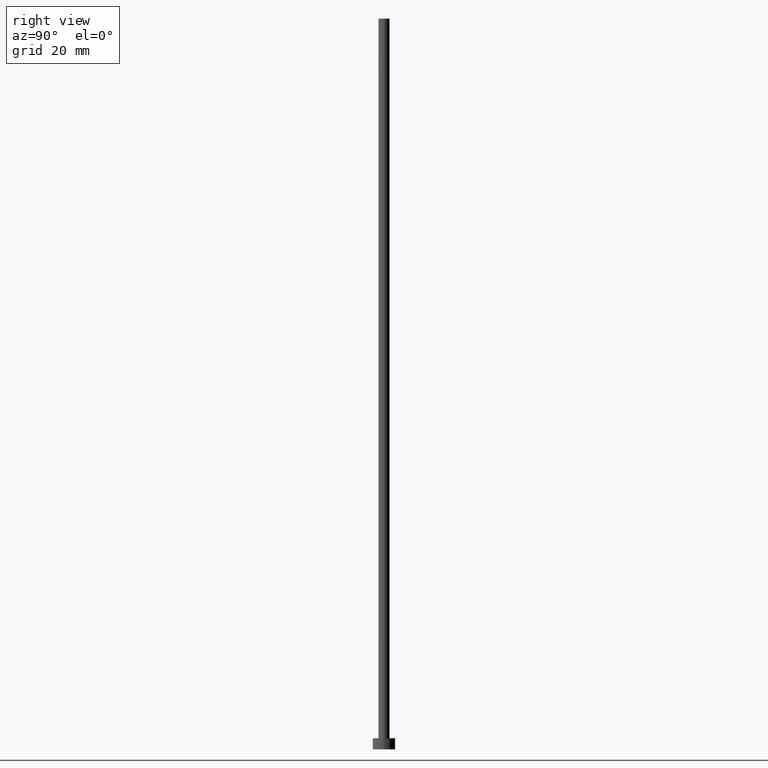
[diagram: clean part render]
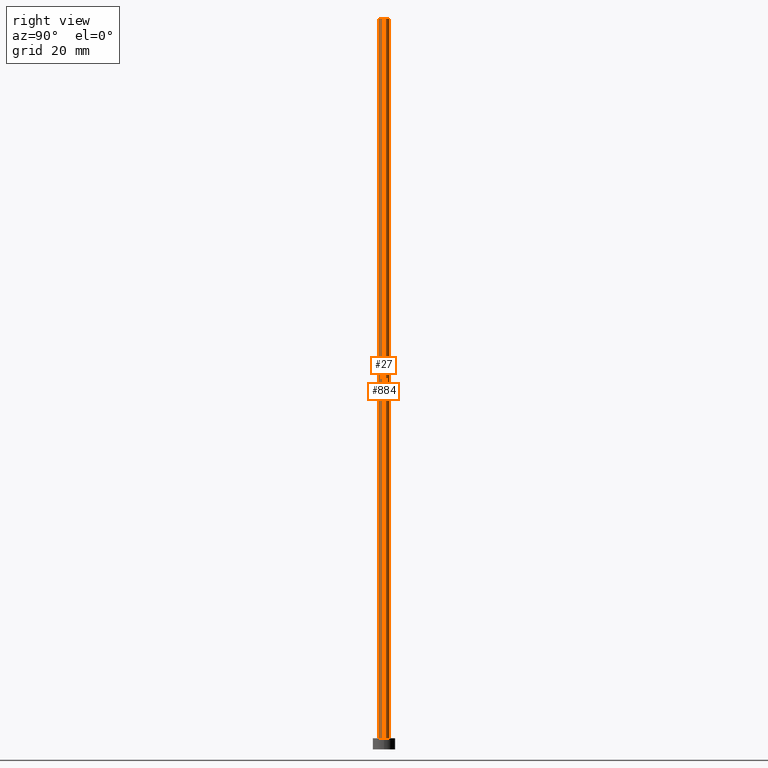
[diagram: same view with one multi-face feature highlighted, each face labeled with its STEP entity id]
A machine part, right view. The highlighted faces form ONE feature: a constant-radius fillet chain: 2 tangent blend faces with common blend radius 1.5 mm. The faces share edges in the B-rep.
Their STEP definitions:
[1] entity #27 (Cylinder):
#1 = EDGE_CURVE ( 'NONE', #370, #1275, #356, .T. ) ;
#9 = CARTESIAN_POINT ( 'NONE',  ( 1.500000000000000222, 1.836970198721030181E-16, 196.0000000000000000 ) ) ;
#11 = DIRECTION ( 'NONE',  ( 0.000000000000000000, 0.000000000000000000, 1.000000000000000000 ) ) ;
#27 = ADVANCED_FACE ( 'NONE', ( #1298 ), #396, .T. ) ;
#78 = DIRECTION ( 'NONE',  ( -0.000000000000000000, -0.000000000000000000, -1.000000000000000000 ) ) ;
#170 = DIRECTION ( 'NONE',  ( -1.000000000000000000, 0.000000000000000000, 0.000000000000000000 ) ) ;
#244 = DIRECTION ( 'NONE',  ( -0.000000000000000000, -0.000000000000000000, -1.000000000000000000 ) ) ;
#333 = LINE ( 'NONE', #626, #1237 ) ;
#336 = ORIENTED_EDGE ( 'NONE', *, *, #1130, .F. ) ;
#337 = CARTESIAN_POINT ( 'NONE',  ( -1.500000000000000222, 0.000000000000000000, 196.0000000000000000 ) ) ;
#356 = CIRCLE ( 'NONE', #487, 1.500000000000000222 ) ;
#370 = VERTEX_POINT ( 'NONE', #337 ) ;
#382 = EDGE_CURVE ( 'NONE', #714, #707, #415, .T. ) ;
#386 = EDGE_LOOP ( 'NONE', ( #336, #1293, #629, #856 ) ) ;
#396 = CYLINDRICAL_SURFACE ( 'NONE', #563, 1.500000000000000222 ) ;
#415 = CIRCLE ( 'NONE', #684, 1.500000000000000222 ) ;
#487 = AXIS2_PLACEMENT_3D ( 'NONE', #1423, #538, #1199 ) ;
#538 = DIRECTION ( 'NONE',  ( 0.000000000000000000, 0.000000000000000000, 1.000000000000000000 ) ) ;
#563 = AXIS2_PLACEMENT_3D ( 'NONE', #864, #78, #170 ) ;
#585 = DIRECTION ( 'NONE',  ( 1.000000000000000000, 0.000000000000000000, 0.000000000000000000 ) ) ;
#626 = CARTESIAN_POINT ( 'NONE',  ( -1.500000000000000222, 0.000000000000000000, 196.0000000000000000 ) ) ;
#629 = ORIENTED_EDGE ( 'NONE', *, *, #1321, .T. ) ;
#642 = DIRECTION ( 'NONE',  ( -0.000000000000000000, -0.000000000000000000, -1.000000000000000000 ) ) ;
#652 = CARTESIAN_POINT ( 'NONE',  ( 1.500000000000000222, 1.836970198721030181E-16, 3.000000000000000000 ) ) ;
#683 = CARTESIAN_POINT ( 'NONE',  ( -1.500000000000000222, 0.000000000000000000, 3.000000000000000000 ) ) ;
#684 = AXIS2_PLACEMENT_3D ( 'NONE', #1268, #11, #585 ) ;
#707 = VERTEX_POINT ( 'NONE', #652 ) ;
#714 = VERTEX_POINT ( 'NONE', #683 ) ;
#856 = ORIENTED_EDGE ( 'NONE', *, *, #382, .T. ) ;
#864 = CARTESIAN_POINT ( 'NONE',  ( 0.000000000000000000, 0.000000000000000000, 196.0000000000000000 ) ) ;
#948 = LINE ( 'NONE', #1281, #1041 ) ;
#1041 = VECTOR ( 'NONE', #244, 1000.000000000000000 ) ;
#1130 = EDGE_CURVE ( 'NONE', #1275, #707, #948, .T. ) ;
#1199 = DIRECTION ( 'NONE',  ( 1.000000000000000000, 0.000000000000000000, 0.000000000000000000 ) ) ;
#1237 = VECTOR ( 'NONE', #642, 1000.000000000000000 ) ;
#1268 = CARTESIAN_POINT ( 'NONE',  ( 0.000000000000000000, 0.000000000000000000, 3.000000000000000000 ) ) ;
#1275 = VERTEX_POINT ( 'NONE', #9 ) ;
#1281 = CARTESIAN_POINT ( 'NONE',  ( 1.500000000000000222, 1.836970198721030181E-16, 196.0000000000000000 ) ) ;
#1293 = ORIENTED_EDGE ( 'NONE', *, *, #1, .F. ) ;
#1298 = FACE_OUTER_BOUND ( 'NONE', #386, .T. ) ;
#1321 = EDGE_CURVE ( 'NONE', #370, #714, #333, .T. ) ;
#1423 = CARTESIAN_POINT ( 'NONE',  ( 0.000000000000000000, 0.000000000000000000, 196.0000000000000000 ) ) ;
[2] entity #884 (Cylinder):
#9 = CARTESIAN_POINT ( 'NONE',  ( 1.500000000000000222, 1.836970198721030181E-16, 196.0000000000000000 ) ) ;
#39 = CARTESIAN_POINT ( 'NONE',  ( 0.000000000000000000, 0.000000000000000000, 3.000000000000000000 ) ) ;
#204 = FACE_OUTER_BOUND ( 'NONE', #488, .T. ) ;
#242 = AXIS2_PLACEMENT_3D ( 'NONE', #1459, #800, #891 ) ;
#244 = DIRECTION ( 'NONE',  ( -0.000000000000000000, -0.000000000000000000, -1.000000000000000000 ) ) ;
#333 = LINE ( 'NONE', #626, #1237 ) ;
#337 = CARTESIAN_POINT ( 'NONE',  ( -1.500000000000000222, 0.000000000000000000, 196.0000000000000000 ) ) ;
#370 = VERTEX_POINT ( 'NONE', #337 ) ;
#387 = AXIS2_PLACEMENT_3D ( 'NONE', #39, #1045, #712 ) ;
#488 = EDGE_LOOP ( 'NONE', ( #1171, #1280, #1058, #968 ) ) ;
#626 = CARTESIAN_POINT ( 'NONE',  ( -1.500000000000000222, 0.000000000000000000, 196.0000000000000000 ) ) ;
#642 = DIRECTION ( 'NONE',  ( -0.000000000000000000, -0.000000000000000000, -1.000000000000000000 ) ) ;
#652 = CARTESIAN_POINT ( 'NONE',  ( 1.500000000000000222, 1.836970198721030181E-16, 3.000000000000000000 ) ) ;
#669 = CYLINDRICAL_SURFACE ( 'NONE', #1016, 1.500000000000000222 ) ;
#683 = CARTESIAN_POINT ( 'NONE',  ( -1.500000000000000222, 0.000000000000000000, 3.000000000000000000 ) ) ;
#688 = CIRCLE ( 'NONE', #242, 1.500000000000000222 ) ;
#707 = VERTEX_POINT ( 'NONE', #652 ) ;
#712 = DIRECTION ( 'NONE',  ( 1.000000000000000000, 0.000000000000000000, 0.000000000000000000 ) ) ;
#714 = VERTEX_POINT ( 'NONE', #683 ) ;
#800 = DIRECTION ( 'NONE',  ( 0.000000000000000000, 0.000000000000000000, 1.000000000000000000 ) ) ;
#884 = ADVANCED_FACE ( 'NONE', ( #204 ), #669, .T. ) ;
#891 = DIRECTION ( 'NONE',  ( 1.000000000000000000, 0.000000000000000000, 0.000000000000000000 ) ) ;
#948 = LINE ( 'NONE', #1281, #1041 ) ;
#968 = ORIENTED_EDGE ( 'NONE', *, *, #1321, .F. ) ;
#1009 = DIRECTION ( 'NONE',  ( -1.000000000000000000, 0.000000000000000000, 0.000000000000000000 ) ) ;
#1016 = AXIS2_PLACEMENT_3D ( 'NONE', #1120, #1472, #1009 ) ;
#1041 = VECTOR ( 'NONE', #244, 1000.000000000000000 ) ;
#1045 = DIRECTION ( 'NONE',  ( 0.000000000000000000, 0.000000000000000000, 1.000000000000000000 ) ) ;
#1058 = ORIENTED_EDGE ( 'NONE', *, *, #1254, .T. ) ;
#1062 = CIRCLE ( 'NONE', #387, 1.500000000000000222 ) ;
#1120 = CARTESIAN_POINT ( 'NONE',  ( 0.000000000000000000, 0.000000000000000000, 196.0000000000000000 ) ) ;
#1130 = EDGE_CURVE ( 'NONE', #1275, #707, #948, .T. ) ;
#1171 = ORIENTED_EDGE ( 'NONE', *, *, #1395, .F. ) ;
#1237 = VECTOR ( 'NONE', #642, 1000.000000000000000 ) ;
#1254 = EDGE_CURVE ( 'NONE', #707, #714, #1062, .T. ) ;
#1275 = VERTEX_POINT ( 'NONE', #9 ) ;
#1280 = ORIENTED_EDGE ( 'NONE', *, *, #1130, .T. ) ;
#1281 = CARTESIAN_POINT ( 'NONE',  ( 1.500000000000000222, 1.836970198721030181E-16, 196.0000000000000000 ) ) ;
#1321 = EDGE_CURVE ( 'NONE', #370, #714, #333, .T. ) ;
#1395 = EDGE_CURVE ( 'NONE', #1275, #370, #688, .T. ) ;
#1459 = CARTESIAN_POINT ( 'NONE',  ( 0.000000000000000000, 0.000000000000000000, 196.0000000000000000 ) ) ;
#1472 = DIRECTION ( 'NONE',  ( -0.000000000000000000, -0.000000000000000000, -1.000000000000000000 ) ) ;